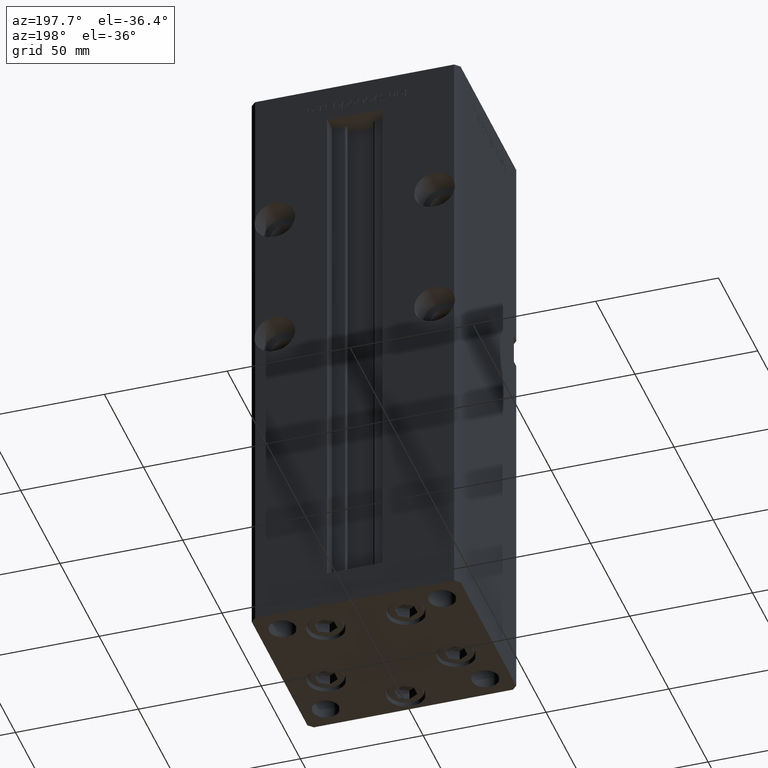
[diagram: clean part render]
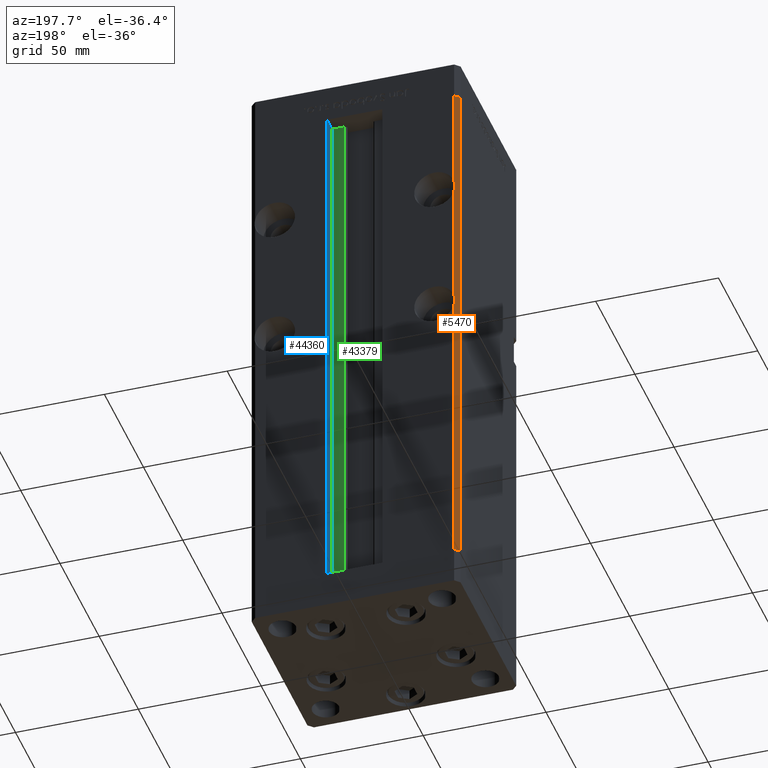
[diagram: same view with three faces highlighted in distinct colors, each labeled with its STEP entity id]
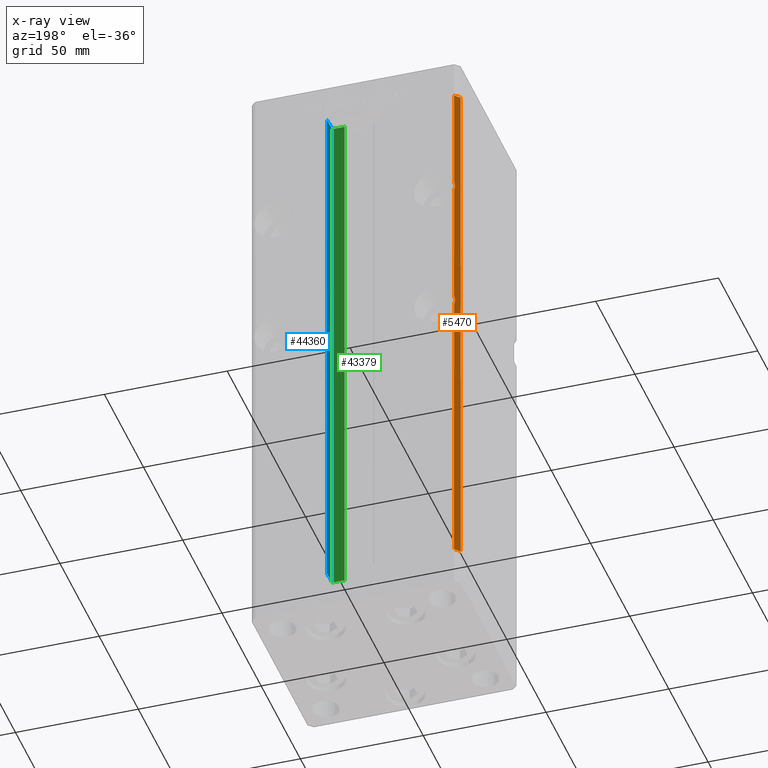
[diagram: x-ray of the same camera — body ghosted, the three highlighted faces saturated]
A machine part, auxiliary view with three faces highlighted in distinct colors.
The next image is the same camera in x-ray (body ghosted, the three faces saturated) — at least one of them is partly hidden behind the body in this view.
Their STEP definitions:

[orange] entity #5470 — the highlighted planar face has unit normal (0.7071, -0.7071, 0).
#379 = VERTEX_POINT ( 'NONE', #1945 ) ;
#455 = CARTESIAN_POINT ( 'NONE',  ( -40.50000000000000711, 37.50000000000000000, 218.5000000000000000 ) ) ;
#788 = DIRECTION ( 'NONE',  ( -0.000000000000000000, -0.000000000000000000, -1.000000000000000000 ) ) ;
#1053 = ORIENTED_EDGE ( 'NONE', *, *, #9018, .T. ) ;
#1848 = VECTOR ( 'NONE', #19251, 1000.000000000000114 ) ;
#1945 = CARTESIAN_POINT ( 'NONE',  ( -40.50000000000000711, 37.50000000000000000, 218.5000000000000000 ) ) ;
#3356 = DIRECTION ( 'NONE',  ( 0.7071067811865450192, -0.7071067811865500152, 0.000000000000000000 ) ) ;
#3503 = CARTESIAN_POINT ( 'NONE',  ( -40.50000000000000711, 37.50000000000000000, 122.0155644370746302 ) ) ;
#3627 = FACE_OUTER_BOUND ( 'NONE', #19168, .T. ) ;
#4715 = ORIENTED_EDGE ( 'NONE', *, *, #8405, .T. ) ;
#4837 = LINE ( 'NONE', #33365, #52643 ) ;
#5338 = EDGE_CURVE ( 'NONE', #379, #23487, #18992, .T. ) ;
#5470 = ADVANCED_FACE ( 'NONE', ( #3627 ), #52304, .F. ) ;
#5807 = CARTESIAN_POINT ( 'NONE',  ( -40.50000000000000711, 37.50000000000000000, 218.5000000000000000 ) ) ;
#6146 = CARTESIAN_POINT ( 'NONE',  ( -40.50000000000000711, 37.50000000000000000, 172.9844355629253982 ) ) ;
#7309 = DIRECTION ( 'NONE',  ( -0.000000000000000000, -0.000000000000000000, -1.000000000000000000 ) ) ;
#7925 = DIRECTION ( 'NONE',  ( 0.7071067811865500152, 0.7071067811865450192, 0.000000000000000000 ) ) ;
#8354 = VERTEX_POINT ( 'NONE', #49414 ) ;
#8405 = EDGE_CURVE ( 'NONE', #29852, #29939, #28447, .T. ) ;
#8445 = EDGE_CURVE ( 'NONE', #23487, #8354, #19873, .T. ) ;
#9018 = EDGE_CURVE ( 'NONE', #379, #10512, #4837, .T. ) ;
#9551 = ORIENTED_EDGE ( 'NONE', *, *, #14935, .T. ) ;
#10512 = VERTEX_POINT ( 'NONE', #44821 ) ;
#10841 = CARTESIAN_POINT ( 'NONE',  ( -40.50000000000000711, 37.50000000000000000, 0.000000000000000000 ) ) ;
#11237 = CARTESIAN_POINT ( 'NONE',  ( -42.50000000000001421, 35.50000000000000711, 218.5000000000000000 ) ) ;
#14079 = ORIENTED_EDGE ( 'NONE', *, *, #15240, .T. ) ;
#14615 = DIRECTION ( 'NONE',  ( -0.7071067811865500152, -0.7071067811865451302, 0.000000000000000000 ) ) ;
#14935 = EDGE_CURVE ( 'NONE', #18307, #8354, #23221, .T. ) ;
#15240 = EDGE_CURVE ( 'NONE', #29939, #43077, #22715, .T. ) ;
#15469 =( BOUNDED_CURVE ( )  B_SPLINE_CURVE ( 3, ( #17213, #29560, #48931, #41138 ),
 .UNSPECIFIED., .F., .F. ) 
 B_SPLINE_CURVE_WITH_KNOTS ( ( 4, 4 ),
 ( 2.894783720120222004, 3.388401587059364228 ),
 .UNSPECIFIED. ) 
 CURVE ( )  GEOMETRIC_REPRESENTATION_ITEM ( )  RATIONAL_B_SPLINE_CURVE ( ( 1.000000000000000000, 0.9797979797979801120, 0.9797979797979801120, 1.000000000000000000 ) ) 
 REPRESENTATION_ITEM ( '' )  );
#17124 = EDGE_CURVE ( 'NONE', #10512, #29852, #15469, .T. ) ;
#17213 = CARTESIAN_POINT ( 'NONE',  ( -40.50000000000000711, 37.50000000000000000, 177.0155644370746302 ) ) ;
#18307 = VERTEX_POINT ( 'NONE', #30411 ) ;
#18465 = VECTOR ( 'NONE', #14615, 1000.000000000000114 ) ;
#18992 = LINE ( 'NONE', #5807, #1848 ) ;
#19168 = EDGE_LOOP ( 'NONE', ( #1053, #52010, #4715, #14079, #48766, #9551, #49478, #46806 ) ) ;
#19251 = DIRECTION ( 'NONE',  ( -0.7071067811865500152, -0.7071067811865451302, 0.000000000000000000 ) ) ;
#19700 = CARTESIAN_POINT ( 'NONE',  ( -40.50000000000000711, 37.50000000000000000, 218.5000000000000000 ) ) ;
#19873 = LINE ( 'NONE', #36275, #22560 ) ;
#19992 = VECTOR ( 'NONE', #44868, 1000.000000000000000 ) ;
#20199 = CARTESIAN_POINT ( 'NONE',  ( -40.50000000000000711, 37.50000000000000000, 117.9844355629254125 ) ) ;
#22560 = VECTOR ( 'NONE', #52669, 1000.000000000000000 ) ;
#22715 =( BOUNDED_CURVE ( )  B_SPLINE_CURVE ( 3, ( #3503, #36595, #32554, #20199 ),
 .UNSPECIFIED., .F., .F. ) 
 B_SPLINE_CURVE_WITH_KNOTS ( ( 4, 4 ),
 ( 2.894783720120223780, 3.388401587059362452 ),
 .UNSPECIFIED. ) 
 CURVE ( )  GEOMETRIC_REPRESENTATION_ITEM ( )  RATIONAL_B_SPLINE_CURVE ( ( 1.000000000000000000, 0.9797979797979803340, 0.9797979797979803340, 1.000000000000000000 ) ) 
 REPRESENTATION_ITEM ( '' )  );
#23205 = CARTESIAN_POINT ( 'NONE',  ( -40.50000000000000711, 37.50000000000000000, 117.9844355629254125 ) ) ;
#23221 = LINE ( 'NONE', #10841, #18465 ) ;
#23487 = VERTEX_POINT ( 'NONE', #11237 ) ;
#28447 = LINE ( 'NONE', #455, #19992 ) ;
#29560 = CARTESIAN_POINT ( 'NONE',  ( -40.83505154639175316, 37.16494845360824684, 175.6857074889016985 ) ) ;
#29852 = VERTEX_POINT ( 'NONE', #6146 ) ;
#29939 = VERTEX_POINT ( 'NONE', #43791 ) ;
#30411 = CARTESIAN_POINT ( 'NONE',  ( -40.50000000000000711, 37.50000000000000000, 0.000000000000000000 ) ) ;
#31880 = CARTESIAN_POINT ( 'NONE',  ( -40.50000000000000711, 37.50000000000000000, 218.5000000000000000 ) ) ;
#32554 = CARTESIAN_POINT ( 'NONE',  ( -40.83505154639175316, 37.16494845360826105, 119.3142925110983583 ) ) ;
#33365 = CARTESIAN_POINT ( 'NONE',  ( -40.50000000000000711, 37.50000000000000000, 218.5000000000000000 ) ) ;
#34251 = LINE ( 'NONE', #19700, #43937 ) ;
#36275 = CARTESIAN_POINT ( 'NONE',  ( -42.50000000000001421, 35.50000000000000711, 218.5000000000000000 ) ) ;
#36595 = CARTESIAN_POINT ( 'NONE',  ( -40.83505154639175316, 37.16494845360826105, 120.6857074889017127 ) ) ;
#38801 = AXIS2_PLACEMENT_3D ( 'NONE', #31880, #3356, #7925 ) ;
#40796 = EDGE_CURVE ( 'NONE', #43077, #18307, #34251, .T. ) ;
#41138 = CARTESIAN_POINT ( 'NONE',  ( -40.50000000000000711, 37.50000000000000000, 172.9844355629253982 ) ) ;
#43077 = VERTEX_POINT ( 'NONE', #23205 ) ;
#43791 = CARTESIAN_POINT ( 'NONE',  ( -40.50000000000000711, 37.50000000000000000, 122.0155644370746302 ) ) ;
#43937 = VECTOR ( 'NONE', #7309, 1000.000000000000000 ) ;
#44821 = CARTESIAN_POINT ( 'NONE',  ( -40.50000000000000711, 37.50000000000000000, 177.0155644370746302 ) ) ;
#44868 = DIRECTION ( 'NONE',  ( -0.000000000000000000, -0.000000000000000000, -1.000000000000000000 ) ) ;
#46806 = ORIENTED_EDGE ( 'NONE', *, *, #5338, .F. ) ;
#48766 = ORIENTED_EDGE ( 'NONE', *, *, #40796, .T. ) ;
#48931 = CARTESIAN_POINT ( 'NONE',  ( -40.83505154639175316, 37.16494845360824684, 174.3142925110983299 ) ) ;
#49414 = CARTESIAN_POINT ( 'NONE',  ( -42.50000000000001421, 35.50000000000000711, 0.000000000000000000 ) ) ;
#49478 = ORIENTED_EDGE ( 'NONE', *, *, #8445, .F. ) ;
#52010 = ORIENTED_EDGE ( 'NONE', *, *, #17124, .T. ) ;
#52304 = PLANE ( 'NONE',  #38801 ) ;
#52643 = VECTOR ( 'NONE', #788, 1000.000000000000000 ) ;
#52669 = DIRECTION ( 'NONE',  ( -0.000000000000000000, -0.000000000000000000, -1.000000000000000000 ) ) ;

[blue] entity #44360 — the highlighted planar face has unit normal (1, 0, 0).
#2641 = CARTESIAN_POINT ( 'NONE',  ( 11.24999999999999112, 37.50000000000000000, 218.5000000000000000 ) ) ;
#5803 = CARTESIAN_POINT ( 'NONE',  ( 11.24999999999999822, 37.50000000000000000, 0.000000000000000000 ) ) ;
#7719 = LINE ( 'NONE', #19853, #18527 ) ;
#9233 = DIRECTION ( 'NONE',  ( -0.000000000000000000, -0.000000000000000000, 1.000000000000000000 ) ) ;
#16119 = EDGE_CURVE ( 'NONE', #16375, #32358, #52737, .T. ) ;
#16375 = VERTEX_POINT ( 'NONE', #2641 ) ;
#16596 = PLANE ( 'NONE',  #23402 ) ;
#17288 = DIRECTION ( 'NONE',  ( 0.000000000000000000, 1.000000000000000000, 0.000000000000000000 ) ) ;
#17396 = CARTESIAN_POINT ( 'NONE',  ( 11.24999999999999822, 31.00000000000000000, 0.000000000000000000 ) ) ;
#18103 = EDGE_CURVE ( 'NONE', #40920, #32358, #21343, .T. ) ;
#18527 = VECTOR ( 'NONE', #36512, 1000.000000000000000 ) ;
#19528 = EDGE_CURVE ( 'NONE', #22987, #16375, #7719, .T. ) ;
#19853 = CARTESIAN_POINT ( 'NONE',  ( 11.24999999999999822, 37.50000000000000000, 0.000000000000000000 ) ) ;
#20306 = EDGE_CURVE ( 'NONE', #40920, #22987, #33683, .T. ) ;
#21343 = LINE ( 'NONE', #50121, #47639 ) ;
#22987 = VERTEX_POINT ( 'NONE', #5803 ) ;
#23237 = ORIENTED_EDGE ( 'NONE', *, *, #20306, .F. ) ;
#23402 = AXIS2_PLACEMENT_3D ( 'NONE', #17396, #41317, #37030 ) ;
#24605 = CARTESIAN_POINT ( 'NONE',  ( 11.24999999999999822, 31.00000000000000000, 0.000000000000000000 ) ) ;
#27593 = CARTESIAN_POINT ( 'NONE',  ( 11.24999999999999822, 31.00000000000000000, 218.5000000000000000 ) ) ;
#28549 = CARTESIAN_POINT ( 'NONE',  ( 11.24999999999999822, 31.00000000000000000, 0.000000000000000000 ) ) ;
#28934 = FACE_OUTER_BOUND ( 'NONE', #48099, .T. ) ;
#32358 = VERTEX_POINT ( 'NONE', #27593 ) ;
#33141 = ORIENTED_EDGE ( 'NONE', *, *, #16119, .F. ) ;
#33683 = LINE ( 'NONE', #24605, #48589 ) ;
#34972 = ORIENTED_EDGE ( 'NONE', *, *, #19528, .F. ) ;
#35075 = CARTESIAN_POINT ( 'NONE',  ( 11.24999999999999822, 0.000000000000000000, 218.5000000000000000 ) ) ;
#36512 = DIRECTION ( 'NONE',  ( -0.000000000000000000, -0.000000000000000000, 1.000000000000000000 ) ) ;
#37030 = DIRECTION ( 'NONE',  ( 0.000000000000000000, 0.000000000000000000, -1.000000000000000000 ) ) ;
#38169 = VECTOR ( 'NONE', #48695, 1000.000000000000000 ) ;
#40920 = VERTEX_POINT ( 'NONE', #28549 ) ;
#41312 = ORIENTED_EDGE ( 'NONE', *, *, #18103, .T. ) ;
#41317 = DIRECTION ( 'NONE',  ( 1.000000000000000000, -0.000000000000000000, 0.000000000000000000 ) ) ;
#44360 = ADVANCED_FACE ( 'NONE', ( #28934 ), #16596, .F. ) ;
#47639 = VECTOR ( 'NONE', #9233, 1000.000000000000000 ) ;
#48099 = EDGE_LOOP ( 'NONE', ( #34972, #23237, #41312, #33141 ) ) ;
#48589 = VECTOR ( 'NONE', #17288, 1000.000000000000000 ) ;
#48695 = DIRECTION ( 'NONE',  ( -0.000000000000000000, -1.000000000000000000, 0.000000000000000000 ) ) ;
#50121 = CARTESIAN_POINT ( 'NONE',  ( 11.24999999999999822, 31.00000000000000000, 0.000000000000000000 ) ) ;
#52737 = LINE ( 'NONE', #35075, #38169 ) ;

[green] entity #43379 — the highlighted planar face has unit normal (0, -1, 0).
#317 = ORIENTED_EDGE ( 'NONE', *, *, #38468, .F. ) ;
#1808 = EDGE_LOOP ( 'NONE', ( #49383, #317, #10667, #50543 ) ) ;
#2285 = VERTEX_POINT ( 'NONE', #45579 ) ;
#3749 = DIRECTION ( 'NONE',  ( 0.000000000000000000, -1.000000000000000000, 0.000000000000000000 ) ) ;
#8662 = CARTESIAN_POINT ( 'NONE',  ( 6.183333333333997928, 31.00000000000000000, 218.5000000000000000 ) ) ;
#9233 = DIRECTION ( 'NONE',  ( -0.000000000000000000, -0.000000000000000000, 1.000000000000000000 ) ) ;
#10667 = ORIENTED_EDGE ( 'NONE', *, *, #37884, .T. ) ;
#16131 = DIRECTION ( 'NONE',  ( 0.000000000000000000, -0.000000000000000000, -1.000000000000000000 ) ) ;
#18103 = EDGE_CURVE ( 'NONE', #40920, #32358, #21343, .T. ) ;
#21343 = LINE ( 'NONE', #50121, #47639 ) ;
#22276 = DIRECTION ( 'NONE',  ( 1.000000000000000000, 0.000000000000000000, 0.000000000000000000 ) ) ;
#22334 = EDGE_CURVE ( 'NONE', #32358, #30970, #47964, .T. ) ;
#22722 = DIRECTION ( 'NONE',  ( -1.000000000000000000, 0.000000000000000000, 0.000000000000000000 ) ) ;
#27013 = CARTESIAN_POINT ( 'NONE',  ( 0.000000000000000000, 31.00000000000000000, 218.5000000000000000 ) ) ;
#27593 = CARTESIAN_POINT ( 'NONE',  ( 11.24999999999999822, 31.00000000000000000, 218.5000000000000000 ) ) ;
#28549 = CARTESIAN_POINT ( 'NONE',  ( 11.24999999999999822, 31.00000000000000000, 0.000000000000000000 ) ) ;
#30970 = VERTEX_POINT ( 'NONE', #8662 ) ;
#31577 = DIRECTION ( 'NONE',  ( -0.000000000000000000, -0.000000000000000000, 1.000000000000000000 ) ) ;
#32358 = VERTEX_POINT ( 'NONE', #27593 ) ;
#36834 = PLANE ( 'NONE',  #46592 ) ;
#37884 = EDGE_CURVE ( 'NONE', #2285, #30970, #40185, .T. ) ;
#38468 = EDGE_CURVE ( 'NONE', #2285, #40920, #51047, .T. ) ;
#38948 = CARTESIAN_POINT ( 'NONE',  ( 6.183333333333997928, 31.00000000000000000, 0.000000000000000000 ) ) ;
#40185 = LINE ( 'NONE', #52821, #42102 ) ;
#40920 = VERTEX_POINT ( 'NONE', #28549 ) ;
#42102 = VECTOR ( 'NONE', #31577, 1000.000000000000000 ) ;
#43379 = ADVANCED_FACE ( 'NONE', ( #48402 ), #36834, .F. ) ;
#44715 = VECTOR ( 'NONE', #22276, 1000.000000000000000 ) ;
#45579 = CARTESIAN_POINT ( 'NONE',  ( 6.183333333333997928, 31.00000000000000000, 0.000000000000000000 ) ) ;
#46592 = AXIS2_PLACEMENT_3D ( 'NONE', #52968, #3749, #16131 ) ;
#47639 = VECTOR ( 'NONE', #9233, 1000.000000000000000 ) ;
#47964 = LINE ( 'NONE', #27013, #49504 ) ;
#48402 = FACE_OUTER_BOUND ( 'NONE', #1808, .T. ) ;
#49383 = ORIENTED_EDGE ( 'NONE', *, *, #18103, .F. ) ;
#49504 = VECTOR ( 'NONE', #22722, 1000.000000000000000 ) ;
#50121 = CARTESIAN_POINT ( 'NONE',  ( 11.24999999999999822, 31.00000000000000000, 0.000000000000000000 ) ) ;
#50543 = ORIENTED_EDGE ( 'NONE', *, *, #22334, .F. ) ;
#51047 = LINE ( 'NONE', #38948, #44715 ) ;
#52821 = CARTESIAN_POINT ( 'NONE',  ( 6.183333333333997928, 31.00000000000000000, 0.000000000000000000 ) ) ;
#52968 = CARTESIAN_POINT ( 'NONE',  ( 6.183333333333997928, 31.00000000000000000, 0.000000000000000000 ) ) ;